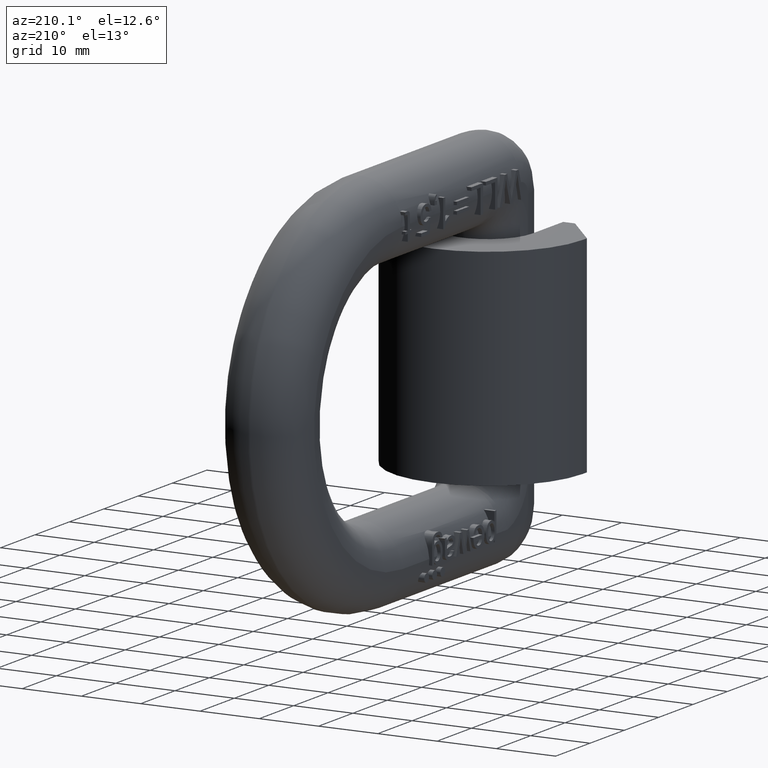
[diagram: clean part render]
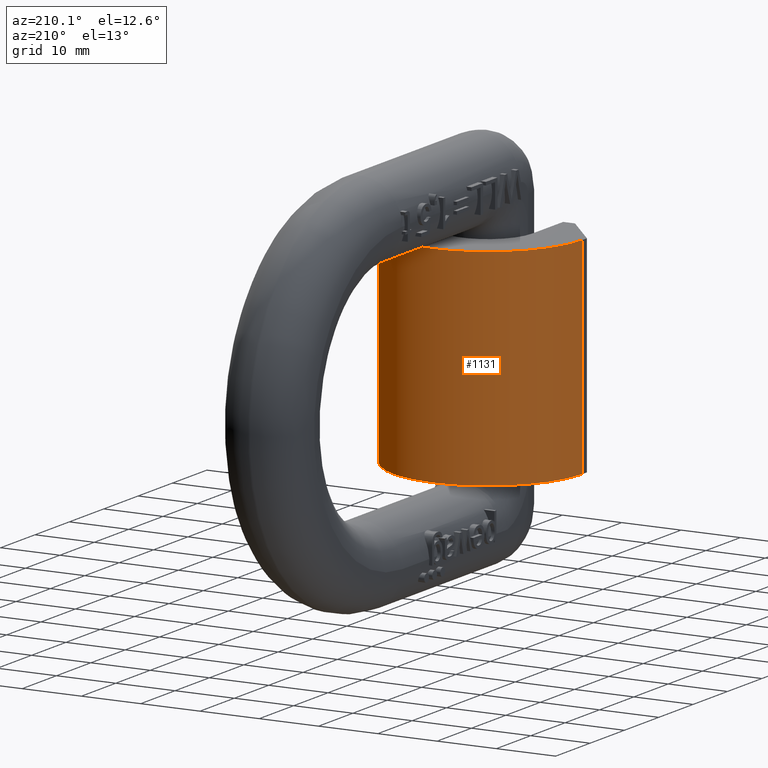
[diagram: same view with one face highlighted and labeled with its STEP entity id]
A machine part, auxiliary view. The second image highlights one B-rep face of the part: STEP entity #1131.
In plain terms, the highlighted cylindrical surface (partial cylindrical patch) has radius 16 mm, axis along (0, 0, -1).
Its self-contained STEP definition (entity closure, byte-faithful):
#1059=CYLINDRICAL_SURFACE('',#8932,16.);
#1131=ADVANCED_FACE('',(#1839),#1059,.T.);
#1839=FACE_OUTER_BOUND('',#2291,.T.);
#2291=EDGE_LOOP('',(#2994,#2995,#2996,#2997));
#2773=CIRCLE('',#8912,16.);
#2774=CIRCLE('',#8914,16.);
#2994=ORIENTED_EDGE('',*,*,#6387,.T.);
#2995=ORIENTED_EDGE('',*,*,#6395,.F.);
#2996=ORIENTED_EDGE('',*,*,#6382,.F.);
#2997=ORIENTED_EDGE('',*,*,#6423,.T.);
#5522=VERTEX_POINT('',#11130);
#5523=VERTEX_POINT('',#11132);
#5527=VERTEX_POINT('',#11141);
#5528=VERTEX_POINT('',#11143);
#6382=EDGE_CURVE('',#5522,#5523,#2773,.T.);
#6387=EDGE_CURVE('',#5528,#5527,#2774,.T.);
#6395=EDGE_CURVE('',#5523,#5527,#7695,.T.);
#6423=EDGE_CURVE('',#5522,#5528,#7723,.T.);
#7695=LINE('',#11157,#8233);
#7723=LINE('',#11211,#8261);
#8233=VECTOR('',#9444,1.);
#8261=VECTOR('',#9492,1.);
#8912=AXIS2_PLACEMENT_3D('',#11131,#9424,#9425);
#8914=AXIS2_PLACEMENT_3D('',#11142,#9432,#9433);
#8932=AXIS2_PLACEMENT_3D('',#11221,#9507,#9508);
#9424=DIRECTION('',(0.,0.,1.));
#9425=DIRECTION('',(1.,0.,0.));
#9432=DIRECTION('',(0.,0.,1.));
#9433=DIRECTION('',(1.,0.,0.));
#9444=DIRECTION('',(0.,0.,-1.));
#9492=DIRECTION('',(0.,0.,-1.));
#9507=DIRECTION('',(0.,0.,-1.));
#9508=DIRECTION('',(-1.,0.,0.));
#11130=CARTESIAN_POINT('',(16.,9.,17.5));
#11131=CARTESIAN_POINT('',(0.,9.,17.5));
#11132=CARTESIAN_POINT('',(-16.,9.,17.5));
#11141=CARTESIAN_POINT('',(-16.,9.,-17.5));
#11142=CARTESIAN_POINT('',(0.,9.,-17.5));
#11143=CARTESIAN_POINT('',(16.,9.,-17.5));
#11157=CARTESIAN_POINT('',(-16.,9.,17.5));
#11211=CARTESIAN_POINT('',(16.,9.,17.5));
#11221=CARTESIAN_POINT('',(0.,9.,17.5));